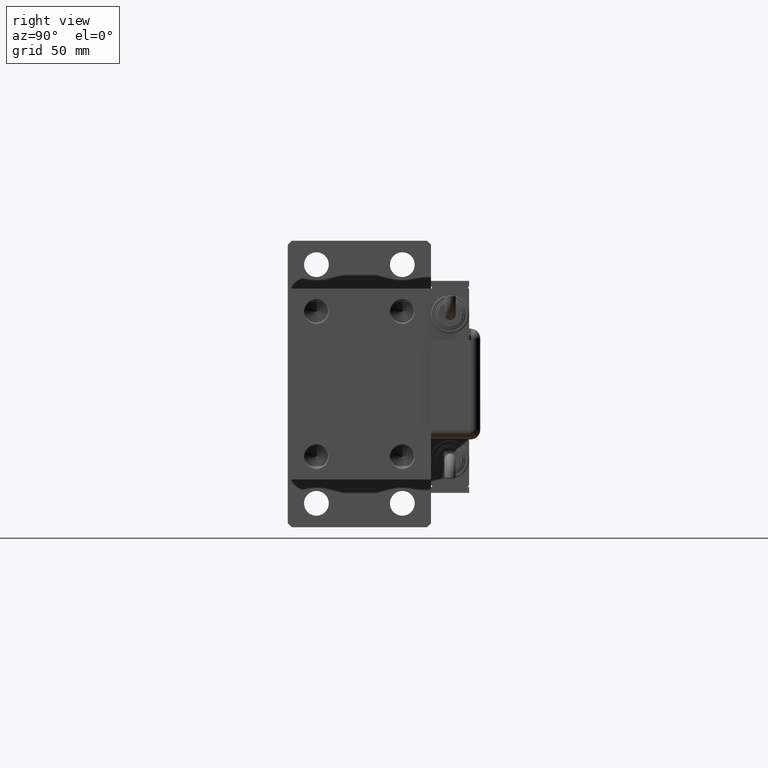
[diagram: clean part render]
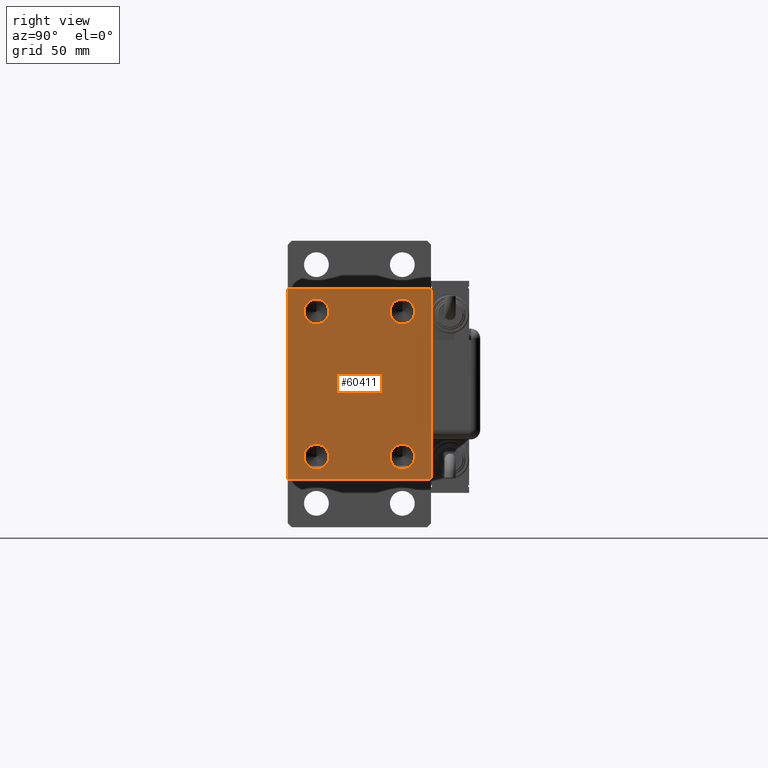
[diagram: same view with one face highlighted and labeled with its STEP entity id]
A machine part, right view. The second image highlights one B-rep face of the part: STEP entity #60411.
In plain terms, the highlighted planar face has unit normal (1, 0, 0).
Its self-contained STEP definition (entity closure, byte-faithful):
#74 = DIRECTION ( 'NONE',  ( 1.000000000000000000, 0.000000000000000000, 0.000000000000000000 ) ) ;
#209 = CARTESIAN_POINT ( 'NONE',  ( 273.0000000000000000, -37.50000000000000000, 49.50000000000004263 ) ) ;
#687 = FACE_BOUND ( 'NONE', #34148, .T. ) ;
#889 = DIRECTION ( 'NONE',  ( 0.000000000000000000, 0.000000000000000000, -1.000000000000000000 ) ) ;
#1237 = ORIENTED_EDGE ( 'NONE', *, *, #26353, .T. ) ;
#1381 = DIRECTION ( 'NONE',  ( 0.000000000000000000, 0.000000000000000000, -1.000000000000000000 ) ) ;
#1689 = DIRECTION ( 'NONE',  ( 1.000000000000000000, -0.000000000000000000, -0.000000000000000000 ) ) ;
#2327 = DIRECTION ( 'NONE',  ( 1.000000000000000000, -0.000000000000000000, -0.000000000000000000 ) ) ;
#2716 = EDGE_LOOP ( 'NONE', ( #17908, #59540 ) ) ;
#2804 = ORIENTED_EDGE ( 'NONE', *, *, #3159, .F. ) ;
#3159 = EDGE_CURVE ( 'NONE', #33452, #7319, #31401, .T. ) ;
#3430 = VERTEX_POINT ( 'NONE', #56910 ) ;
#4008 = VERTEX_POINT ( 'NONE', #209 ) ;
#4302 = CIRCLE ( 'NONE', #32556, 6.499999999999922728 ) ;
#4817 = FACE_BOUND ( 'NONE', #22009, .T. ) ;
#5539 = LINE ( 'NONE', #36744, #9637 ) ;
#5657 = CIRCLE ( 'NONE', #29903, 6.499999999999922728 ) ;
#6313 = EDGE_CURVE ( 'NONE', #37337, #3430, #4302, .T. ) ;
#6811 = VERTEX_POINT ( 'NONE', #21955 ) ;
#6929 = AXIS2_PLACEMENT_3D ( 'NONE', #35243, #2327, #54522 ) ;
#7308 = CARTESIAN_POINT ( 'NONE',  ( 273.0000000000000000, 37.49999999999999289, 49.50000000000000000 ) ) ;
#7309 = VERTEX_POINT ( 'NONE', #9811 ) ;
#7319 = VERTEX_POINT ( 'NONE', #47486 ) ;
#8008 = CARTESIAN_POINT ( 'NONE',  ( 273.0000000000000000, -37.50000000000000000, 49.99999999999998579 ) ) ;
#8489 = EDGE_CURVE ( 'NONE', #22666, #28049, #54934, .T. ) ;
#8642 = DIRECTION ( 'NONE',  ( 1.000000000000000000, -0.000000000000000000, -0.000000000000000000 ) ) ;
#8701 = VECTOR ( 'NONE', #13454, 1000.000000000000000 ) ;
#8790 = ORIENTED_EDGE ( 'NONE', *, *, #28579, .F. ) ;
#9399 = VECTOR ( 'NONE', #58745, 1000.000000000000000 ) ;
#9637 = VECTOR ( 'NONE', #59604, 1000.000000000000000 ) ;
#9811 = CARTESIAN_POINT ( 'NONE',  ( 273.0000000000000000, -37.50000000000000000, -49.49999999999997158 ) ) ;
#9896 = CARTESIAN_POINT ( 'NONE',  ( 273.0000000000000000, 43.50000000000130740, 43.49999999999828759 ) ) ;
#10044 = ORIENTED_EDGE ( 'NONE', *, *, #28551, .T. ) ;
#10246 = AXIS2_PLACEMENT_3D ( 'NONE', #25863, #53697, #889 ) ;
#10515 = DIRECTION ( 'NONE',  ( -0.000000000000000000, -0.7071067811865230368, 0.7071067811865721087 ) ) ;
#13454 = DIRECTION ( 'NONE',  ( 0.000000000000000000, -1.387778780781445676E-16, 1.000000000000000000 ) ) ;
#14579 = ORIENTED_EDGE ( 'NONE', *, *, #54533, .T. ) ;
#14692 = DIRECTION ( 'NONE',  ( 1.000000000000000000, -0.000000000000000000, -0.000000000000000000 ) ) ;
#17246 = EDGE_CURVE ( 'NONE', #50711, #27417, #59382, .T. ) ;
#17850 = EDGE_CURVE ( 'NONE', #7309, #22666, #56653, .T. ) ;
#17908 = ORIENTED_EDGE ( 'NONE', *, *, #45765, .F. ) ;
#18126 = CARTESIAN_POINT ( 'NONE',  ( 273.0000000000000000, -22.50000000000000000, 37.99999999999999289 ) ) ;
#19695 = LINE ( 'NONE', #9896, #28066 ) ;
#20043 = VERTEX_POINT ( 'NONE', #20466 ) ;
#20188 = DIRECTION ( 'NONE',  ( 1.000000000000000000, -0.000000000000000000, -0.000000000000000000 ) ) ;
#20466 = CARTESIAN_POINT ( 'NONE',  ( 273.0000000000000000, -22.50000000000000000, -44.50000000000004263 ) ) ;
#21402 = AXIS2_PLACEMENT_3D ( 'NONE', #29228, #1689, #1381 ) ;
#21583 = AXIS2_PLACEMENT_3D ( 'NONE', #32138, #22022, #27684 ) ;
#21955 = CARTESIAN_POINT ( 'NONE',  ( 273.0000000000000000, 37.50000000000000711, -49.50000000000005684 ) ) ;
#22009 = EDGE_LOOP ( 'NONE', ( #42904, #45804 ) ) ;
#22019 = EDGE_CURVE ( 'NONE', #6811, #56604, #57099, .T. ) ;
#22022 = DIRECTION ( 'NONE',  ( 1.000000000000000000, -0.000000000000000000, -0.000000000000000000 ) ) ;
#22550 = LINE ( 'NONE', #8008, #50406 ) ;
#22666 = VERTEX_POINT ( 'NONE', #32322 ) ;
#22856 = CARTESIAN_POINT ( 'NONE',  ( 273.0000000000000000, 22.50000000000000000, 37.99999999999999289 ) ) ;
#24115 = DIRECTION ( 'NONE',  ( 0.000000000000000000, 0.000000000000000000, -1.000000000000000000 ) ) ;
#24729 = FACE_BOUND ( 'NONE', #52631, .T. ) ;
#25862 = CARTESIAN_POINT ( 'NONE',  ( 273.0000000000000000, 37.49999999999999289, 50.00000000000000711 ) ) ;
#25863 = CARTESIAN_POINT ( 'NONE',  ( 273.0000000000000000, -22.50000000000000000, -38.00000000000000711 ) ) ;
#26353 = EDGE_CURVE ( 'NONE', #56604, #50711, #19695, .T. ) ;
#27417 = VERTEX_POINT ( 'NONE', #57274 ) ;
#27499 = LINE ( 'NONE', #32878, #45042 ) ;
#27684 = DIRECTION ( 'NONE',  ( 0.000000000000000000, 0.000000000000000000, -1.000000000000000000 ) ) ;
#28049 = VERTEX_POINT ( 'NONE', #39648 ) ;
#28066 = VECTOR ( 'NONE', #10515, 1000.000000000000000 ) ;
#28551 = EDGE_CURVE ( 'NONE', #28049, #6811, #27499, .T. ) ;
#28579 = EDGE_CURVE ( 'NONE', #3430, #37337, #5657, .T. ) ;
#29228 = CARTESIAN_POINT ( 'NONE',  ( 273.0000000000000000, 22.50000000000000000, -38.00000000000000711 ) ) ;
#29781 = CARTESIAN_POINT ( 'NONE',  ( 273.0000000000000000, 0.000000000000000000, 0.000000000000000000 ) ) ;
#29903 = AXIS2_PLACEMENT_3D ( 'NONE', #48973, #20188, #54343 ) ;
#29905 = ORIENTED_EDGE ( 'NONE', *, *, #34374, .T. ) ;
#31401 = CIRCLE ( 'NONE', #32429, 6.499999999999922728 ) ;
#31406 = DIRECTION ( 'NONE',  ( -0.000000000000000000, 0.7071067811865279218, -0.7071067811865671127 ) ) ;
#31481 = CARTESIAN_POINT ( 'NONE',  ( 273.0000000000000000, -22.50000000000000000, -31.49999999999997158 ) ) ;
#31872 = VECTOR ( 'NONE', #60309, 1000.000000000000000 ) ;
#32138 = CARTESIAN_POINT ( 'NONE',  ( 273.0000000000000000, 22.50000000000000000, -38.00000000000000711 ) ) ;
#32322 = CARTESIAN_POINT ( 'NONE',  ( 273.0000000000000000, -37.00000000000002842, -50.00000000000000000 ) ) ;
#32352 = CARTESIAN_POINT ( 'NONE',  ( 273.0000000000000000, 22.50000000000000000, 44.49999999999991473 ) ) ;
#32429 = AXIS2_PLACEMENT_3D ( 'NONE', #22856, #42175, #61426 ) ;
#32556 = AXIS2_PLACEMENT_3D ( 'NONE', #18126, #8642, #56393 ) ;
#32878 = CARTESIAN_POINT ( 'NONE',  ( 273.0000000000000000, 43.50000000000029132, -43.49999999999968736 ) ) ;
#33446 = CARTESIAN_POINT ( 'NONE',  ( 273.0000000000000000, 22.50000000000000000, -31.49999999999997158 ) ) ;
#33452 = VERTEX_POINT ( 'NONE', #32352 ) ;
#34148 = EDGE_LOOP ( 'NONE', ( #2804, #51617 ) ) ;
#34173 = EDGE_CURVE ( 'NONE', #7319, #33452, #34192, .T. ) ;
#34192 = CIRCLE ( 'NONE', #6929, 6.499999999999922728 ) ;
#34374 = EDGE_CURVE ( 'NONE', #4008, #7309, #22550, .T. ) ;
#34531 = FACE_BOUND ( 'NONE', #2716, .T. ) ;
#35211 = EDGE_LOOP ( 'NONE', ( #60164, #14579, #29905, #35834, #53741, #10044, #57039, #1237 ) ) ;
#35243 = CARTESIAN_POINT ( 'NONE',  ( 273.0000000000000000, 22.50000000000000000, 37.99999999999999289 ) ) ;
#35724 = CIRCLE ( 'NONE', #21583, 6.500000000000005329 ) ;
#35834 = ORIENTED_EDGE ( 'NONE', *, *, #17850, .T. ) ;
#36744 = CARTESIAN_POINT ( 'NONE',  ( 273.0000000000000000, -43.49999999999975842, 43.50000000000036238 ) ) ;
#37337 = VERTEX_POINT ( 'NONE', #46568 ) ;
#39053 = CARTESIAN_POINT ( 'NONE',  ( 273.0000000000000000, 22.50000000000000000, -44.50000000000004263 ) ) ;
#39074 = DIRECTION ( 'NONE',  ( 0.000000000000000000, 0.000000000000000000, -1.000000000000000000 ) ) ;
#39648 = CARTESIAN_POINT ( 'NONE',  ( 273.0000000000000000, 37.00000000000007105, -50.00000000000000000 ) ) ;
#40055 = AXIS2_PLACEMENT_3D ( 'NONE', #29781, #74, #24115 ) ;
#40238 = EDGE_CURVE ( 'NONE', #43624, #20043, #56508, .T. ) ;
#42175 = DIRECTION ( 'NONE',  ( 1.000000000000000000, -0.000000000000000000, -0.000000000000000000 ) ) ;
#42560 = CIRCLE ( 'NONE', #10246, 6.500000000000005329 ) ;
#42904 = ORIENTED_EDGE ( 'NONE', *, *, #40238, .F. ) ;
#43109 = FACE_OUTER_BOUND ( 'NONE', #35211, .T. ) ;
#43624 = VERTEX_POINT ( 'NONE', #31481 ) ;
#44158 = EDGE_CURVE ( 'NONE', #20043, #43624, #42560, .T. ) ;
#44294 = ORIENTED_EDGE ( 'NONE', *, *, #6313, .F. ) ;
#45016 = VECTOR ( 'NONE', #31406, 1000.000000000000000 ) ;
#45042 = VECTOR ( 'NONE', #52149, 999.9999999999998863 ) ;
#45765 = EDGE_CURVE ( 'NONE', #59230, #59554, #59770, .T. ) ;
#45804 = ORIENTED_EDGE ( 'NONE', *, *, #44158, .F. ) ;
#46568 = CARTESIAN_POINT ( 'NONE',  ( 273.0000000000000000, -22.50000000000000000, 44.49999999999991473 ) ) ;
#47426 = AXIS2_PLACEMENT_3D ( 'NONE', #52355, #14692, #39074 ) ;
#47486 = CARTESIAN_POINT ( 'NONE',  ( 273.0000000000000000, 22.50000000000000000, 31.50000000000007105 ) ) ;
#48973 = CARTESIAN_POINT ( 'NONE',  ( 273.0000000000000000, -22.50000000000000000, 37.99999999999999289 ) ) ;
#48997 = EDGE_CURVE ( 'NONE', #59554, #59230, #35724, .T. ) ;
#50406 = VECTOR ( 'NONE', #61121, 1000.000000000000000 ) ;
#50711 = VERTEX_POINT ( 'NONE', #61309 ) ;
#51617 = ORIENTED_EDGE ( 'NONE', *, *, #34173, .F. ) ;
#52149 = DIRECTION ( 'NONE',  ( -0.000000000000000000, 0.7071067811865425767, 0.7071067811865525687 ) ) ;
#52355 = CARTESIAN_POINT ( 'NONE',  ( 273.0000000000000000, -22.50000000000000000, -38.00000000000000711 ) ) ;
#52631 = EDGE_LOOP ( 'NONE', ( #44294, #8790 ) ) ;
#53689 = CARTESIAN_POINT ( 'NONE',  ( 273.0000000000000000, -37.50000000000000000, -50.00000000000000000 ) ) ;
#53697 = DIRECTION ( 'NONE',  ( 1.000000000000000000, -0.000000000000000000, -0.000000000000000000 ) ) ;
#53741 = ORIENTED_EDGE ( 'NONE', *, *, #8489, .T. ) ;
#53810 = PLANE ( 'NONE',  #40055 ) ;
#54343 = DIRECTION ( 'NONE',  ( 0.000000000000000000, 0.000000000000000000, -1.000000000000000000 ) ) ;
#54522 = DIRECTION ( 'NONE',  ( 0.000000000000000000, 0.000000000000000000, -1.000000000000000000 ) ) ;
#54533 = EDGE_CURVE ( 'NONE', #27417, #4008, #5539, .T. ) ;
#54934 = LINE ( 'NONE', #53689, #9399 ) ;
#56351 = CARTESIAN_POINT ( 'NONE',  ( 273.0000000000000000, -43.50000000000103739, -43.49999999999862865 ) ) ;
#56393 = DIRECTION ( 'NONE',  ( 0.000000000000000000, 0.000000000000000000, -1.000000000000000000 ) ) ;
#56508 = CIRCLE ( 'NONE', #47426, 6.500000000000005329 ) ;
#56604 = VERTEX_POINT ( 'NONE', #7308 ) ;
#56653 = LINE ( 'NONE', #56351, #45016 ) ;
#56910 = CARTESIAN_POINT ( 'NONE',  ( 273.0000000000000000, -22.50000000000000000, 31.50000000000007105 ) ) ;
#57039 = ORIENTED_EDGE ( 'NONE', *, *, #22019, .T. ) ;
#57099 = LINE ( 'NONE', #57731, #8701 ) ;
#57274 = CARTESIAN_POINT ( 'NONE',  ( 273.0000000000000000, -37.00000000000004974, 49.99999999999998579 ) ) ;
#57731 = CARTESIAN_POINT ( 'NONE',  ( 273.0000000000000000, 37.50000000000000711, -50.00000000000000000 ) ) ;
#58745 = DIRECTION ( 'NONE',  ( 0.000000000000000000, 1.000000000000000000, 0.000000000000000000 ) ) ;
#59230 = VERTEX_POINT ( 'NONE', #33446 ) ;
#59382 = LINE ( 'NONE', #25862, #31872 ) ;
#59540 = ORIENTED_EDGE ( 'NONE', *, *, #48997, .F. ) ;
#59554 = VERTEX_POINT ( 'NONE', #39053 ) ;
#59604 = DIRECTION ( 'NONE',  ( 0.000000000000000000, -0.7071067811865524577, -0.7071067811865426878 ) ) ;
#59770 = CIRCLE ( 'NONE', #21402, 6.500000000000005329 ) ;
#60164 = ORIENTED_EDGE ( 'NONE', *, *, #17246, .T. ) ;
#60309 = DIRECTION ( 'NONE',  ( 0.000000000000000000, -1.000000000000000000, -2.775557561562891844E-16 ) ) ;
#60411 = ADVANCED_FACE ( 'NONE', ( #687, #24729, #4817, #34531, #43109 ), #53810, .T. ) ;
#61121 = DIRECTION ( 'NONE',  ( 0.000000000000000000, 0.000000000000000000, -1.000000000000000000 ) ) ;
#61309 = CARTESIAN_POINT ( 'NONE',  ( 273.0000000000000000, 37.00000000000002132, 50.00000000000000711 ) ) ;
#61426 = DIRECTION ( 'NONE',  ( 0.000000000000000000, 0.000000000000000000, -1.000000000000000000 ) ) ;